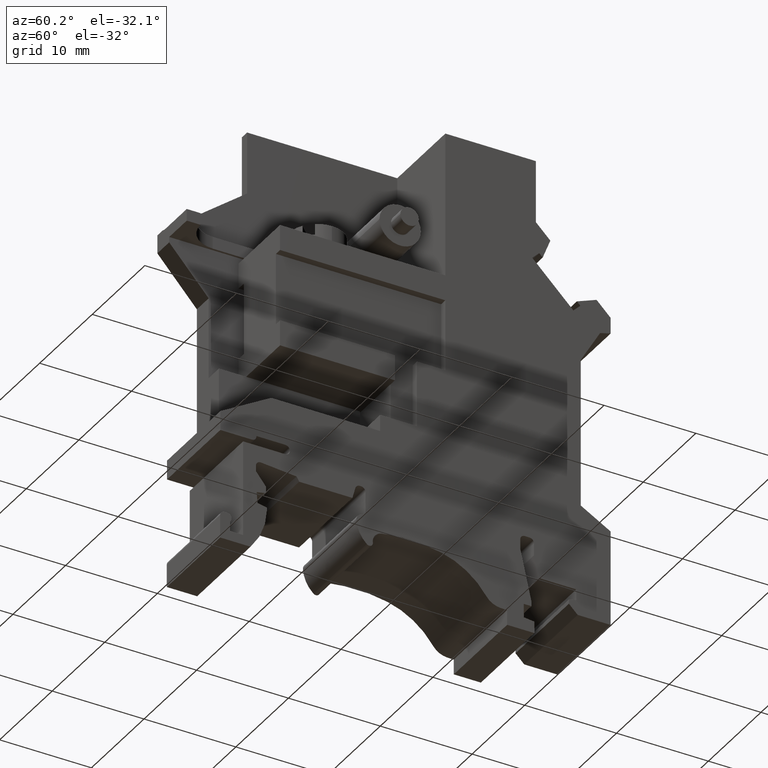
[diagram: clean part render]
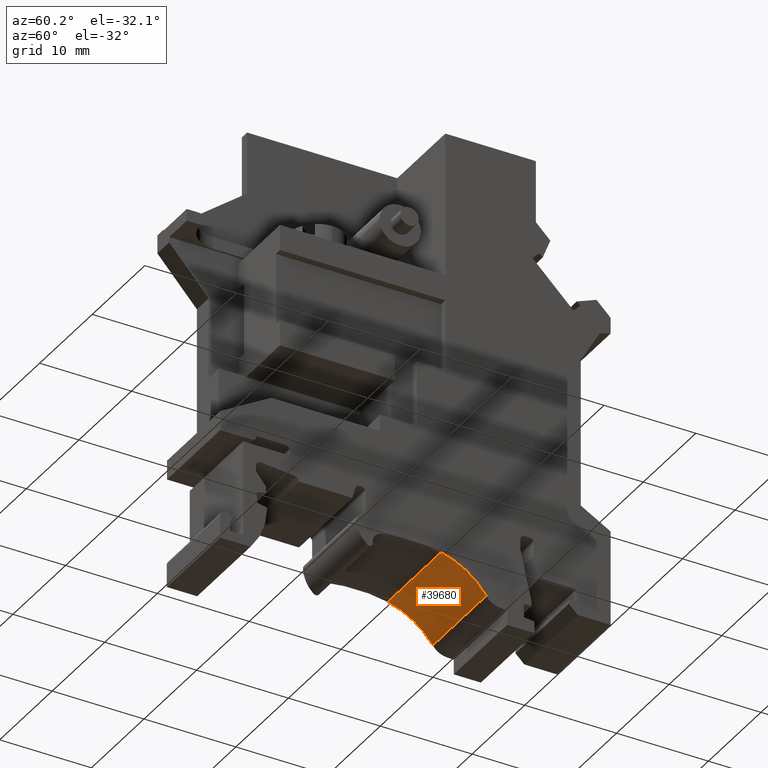
[diagram: same view with one face highlighted and labeled with its STEP entity id]
A machine part, auxiliary view. The second image highlights one B-rep face of the part: STEP entity #39680.
In plain terms, the highlighted cylindrical surface (partial cylindrical patch) has radius 8 mm, axis along (1, 0, 0).
Its self-contained STEP definition (entity closure, byte-faithful):
#4350=CARTESIAN_POINT('',(-14.6816030777047,-0.463294823641782,12.));
#4360=VERTEX_POINT('',#4350);
#4390=CARTESIAN_POINT('',(-16.3906522650137,-8.27860997246067,12.));
#4400=DIRECTION('',(0.,0.,1.));
#4410=DIRECTION('',(1.,0.,0.));
#4420=AXIS2_PLACEMENT_3D('',#4390,#4400,#4410);
#4430=CIRCLE('',#4420,7.99999999999997);
#4440=CARTESIAN_POINT('',(-9.78407259860712,-3.7671683944922,12.));
#4450=VERTEX_POINT('',#4440);
#4460=EDGE_CURVE('',#4450,#4360,#4430,.T.);
#29800=CARTESIAN_POINT('',(-9.78407259860712,-3.7671683944922,22.15));
#29810=VERTEX_POINT('',#29800);
#29840=CARTESIAN_POINT('',(-16.3906522650137,-8.27860997246067,22.15));
#29850=DIRECTION('',(0.,0.,1.));
#29860=DIRECTION('',(1.,0.,0.));
#29870=AXIS2_PLACEMENT_3D('',#29840,#29850,#29860);
#29880=CIRCLE('',#29870,7.99999999999997);
#29890=CARTESIAN_POINT('',(-14.6816030777047,-0.463294823641782,22.15));
#29900=VERTEX_POINT('',#29890);
#29910=EDGE_CURVE('',#29810,#29900,#29880,.T.);
#39360=CARTESIAN_POINT('',(-9.78407259860714,-3.7671683944922,24.));
#39370=DIRECTION('',(0.,0.,-1.));
#39380=VECTOR('',#39370,1.);
#39390=LINE('',#39360,#39380);
#39400=EDGE_CURVE('',#29810,#4450,#39390,.T.);
#39520=CARTESIAN_POINT('',(-16.3906522650137,-8.27860997246067,24.));
#39530=DIRECTION('',(0.,0.,1.));
#39540=DIRECTION('',(1.,0.,0.));
#39550=AXIS2_PLACEMENT_3D('',#39520,#39530,#39540);
#39560=CYLINDRICAL_SURFACE('',#39550,7.99999999999997);
#39570=CARTESIAN_POINT('',(-14.6816030777047,-0.463294823641647,24.));
#39580=DIRECTION('',(0.,0.,-1.));
#39590=VECTOR('',#39580,1.);
#39600=LINE('',#39570,#39590);
#39610=EDGE_CURVE('',#29900,#4360,#39600,.T.);
#39620=ORIENTED_EDGE('',*,*,#39610,.T.);
#39630=ORIENTED_EDGE('',*,*,#29910,.T.);
#39640=ORIENTED_EDGE('',*,*,#39400,.F.);
#39650=ORIENTED_EDGE('',*,*,#4460,.F.);
#39660=EDGE_LOOP('',(#39650,#39640,#39630,#39620));
#39670=FACE_OUTER_BOUND('',#39660,.T.);
#39680=ADVANCED_FACE('',(#39670),#39560,.F.);